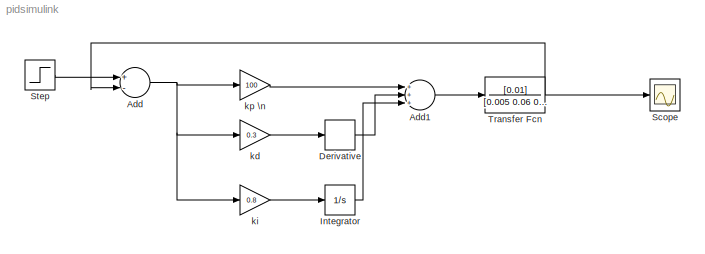
MODEL pidsimulink
KIND model
BLOCK [Sum] Add
  InputSameDT = off
  Inputs = +-
  OutDataTypeStr = Inherit: Inherit via internal rule
  Ports = [2, 1]
  SID = 2
  SaturateOnIntegerOverflow = off
BLOCK [Sum] Add1
  InputSameDT = off
  Inputs = +++
  OutDataTypeStr = Inherit: Inherit via internal rule
  Ports = [3, 1]
  SID = 11
  SaturateOnIntegerOverflow = off
BLOCK [Derivative] Derivative
  SID = 6
BLOCK [Integrator] Integrator
  Ports = [1, 1]
  SID = 7
BLOCK [Scope] Scope
  Floating = off
  NumInputPorts = 1
  Ports = [1]
  SID = 10
  ScopeSpecificationString = Simulink.scopes.TimeScopeBlockCfg('CurrentConfiguration', extmgr.ConfigurationSet(extmgr.Configuration('Core','General UI',true,'FigureColor',[1 1 1]),extmgr.Configuration('Core','Source UI',true),extmgr.Configuration('Sources','WiredSimulink',true),extmgr.Configuration('Visuals','Time Domain',true,'SerializedDisplays',{struct('MinYLimReal','-0.2301','MaxYLimReal','2.0709','YLabelReal','','MinYLim...<+1514ch>
BLOCK [Step] Step
  SID = 1
  SampleTime = 0
  Time = 0
BLOCK [TransferFcn] Transfer Fcn
  Denominator = [0.005 0.06 0.1 0.0001]
  Numerator = [0.01]
  SID = 9
BLOCK [Gain] kd 
  Gain = 0.3
  OutDataTypeStr = Inherit: Inherit via internal rule
  ParamDataTypeStr = Inherit: Inherit via internal rule
  SID = 4
  SaturateOnIntegerOverflow = off
BLOCK [Gain] ki 
  Gain = 0.8
  OutDataTypeStr = Inherit: Inherit via internal rule
  ParamDataTypeStr = Inherit: Inherit via internal rule
  SID = 5
  SaturateOnIntegerOverflow = off
BLOCK [Gain] kp \n
  Gain = 100
  OutDataTypeStr = Inherit: Inherit via internal rule
  ParamDataTypeStr = Inherit: Inherit via internal rule
  SID = 3
  SaturateOnIntegerOverflow = off
LINE Add1:1 -> Transfer Fcn:1
NET Add:1 -> kd :1, ki :1, kp \n:1
LINE Derivative:1 -> Add1:2
LINE Integrator:1 -> Add1:3
LINE Step:1 -> Add:1
NET Transfer Fcn:1 -> Add:2, Scope:1
LINE kd :1 -> Derivative:1
LINE ki :1 -> Integrator:1
LINE kp \n:1 -> Add1:1
note: NET lines group one-source signal fan-out (src -> all destinations, sorted); 1:1 wires keep LINE
